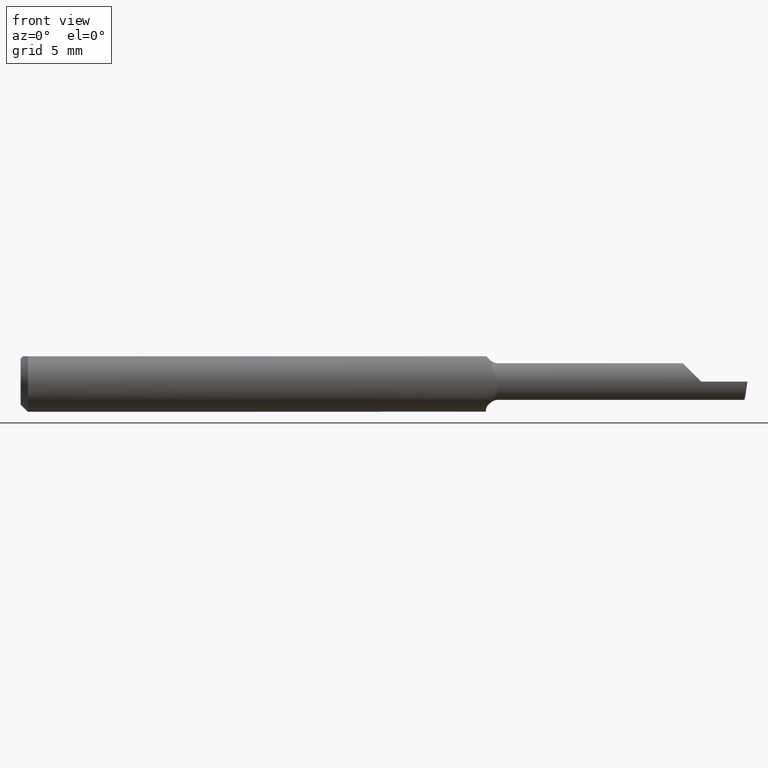
[diagram: clean part render]
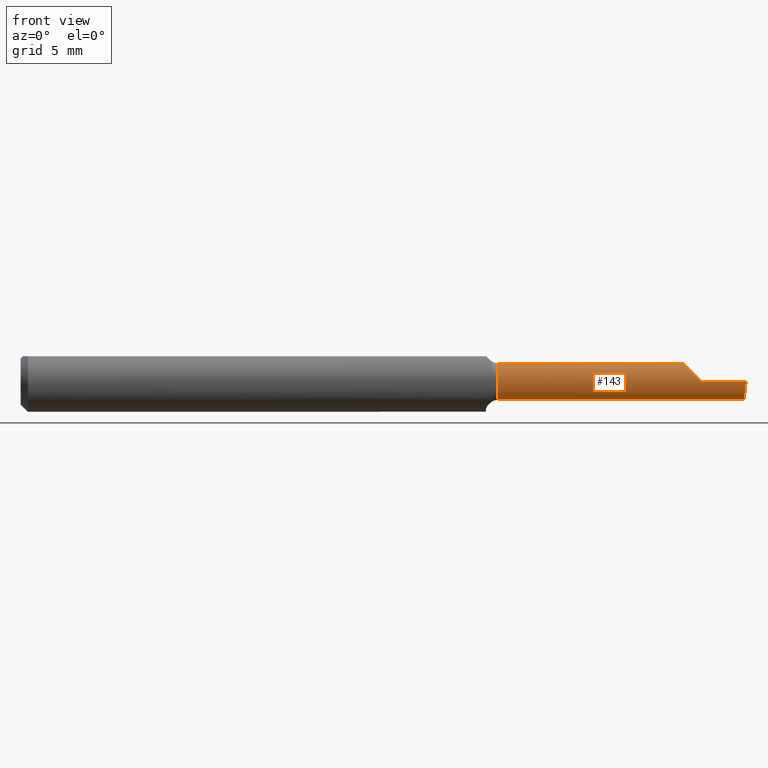
[diagram: same view with one face highlighted and labeled with its STEP entity id]
A machine part, front view. The second image highlights one B-rep face of the part: STEP entity #143.
In plain terms, the highlighted cylindrical surface (edge-blend (fillet) strip) has radius 1.1176 mm, axis along (1, 0, -0).
Its self-contained STEP definition (entity closure, byte-faithful):
#3 = DIRECTION ( 'NONE',  ( 0.000000000000000000, 1.000000000000000000, 0.000000000000000000 ) ) ;
#4 = DIRECTION ( 'NONE',  ( 1.000000000000000000, 1.244524452569355806E-16, -0.000000000000000000 ) ) ;
#9 = VERTEX_POINT ( 'NONE', #453 ) ;
#13 = DIRECTION ( 'NONE',  ( 0.000000000000000000, 1.000000000000000000, 0.000000000000000000 ) ) ;
#14 = VERTEX_POINT ( 'NONE', #300 ) ;
#29 =( BOUNDED_CURVE ( )  B_SPLINE_CURVE ( 3, ( #585, #461, #391, #399 ),
 .UNSPECIFIED., .F., .T. ) 
 B_SPLINE_CURVE_WITH_KNOTS ( ( 4, 4 ),
 ( 3.682777070145067277, 4.704434351040720941 ),
 .UNSPECIFIED. ) 
 CURVE ( )  GEOMETRIC_REPRESENTATION_ITEM ( )  RATIONAL_B_SPLINE_CURVE ( ( 1.000000000000000000, 0.9148931230978425422, 0.9148931230978425422, 1.000000000000000000 ) ) 
 REPRESENTATION_ITEM ( '' )  );
#55 = CARTESIAN_POINT ( 'NONE',  ( 1.493512013321905085, -0.05456631794137141445, -0.02956846890908434305 ) ) ;
#67 = EDGE_CURVE ( 'NONE', #14, #572, #287, .T. ) ;
#107 = CARTESIAN_POINT ( 'NONE',  ( 1.404000000000000137, -0.06234999999999997489, -1.868634782302818344E-17 ) ) ;
#134 = VECTOR ( 'NONE', #306, 39.37007874015748143 ) ;
#143 = ADVANCED_FACE ( 'NONE', ( #404 ), #319, .T. ) ;
#145 = VERTEX_POINT ( 'NONE', #853 ) ;
#155 = CARTESIAN_POINT ( 'NONE',  ( 0.9850000000000000977, -0.04101666666666662492, 0.03771236166328252593 ) ) ;
#157 = CARTESIAN_POINT ( 'NONE',  ( 1.404000000000000137, -0.06234860793252439831, 0.0003499999999998593212 ) ) ;
#170 = CARTESIAN_POINT ( 'NONE',  ( 1.494927643025548925, -0.06234999999999996795, -0.01580873299344354513 ) ) ;
#203 = EDGE_CURVE ( 'NONE', #572, #840, #667, .T. ) ;
#231 = DIRECTION ( 'NONE',  ( -1.000000000000000000, -1.244524452569355806E-16, 0.000000000000000000 ) ) ;
#234 = DIRECTION ( 'NONE',  ( 1.000000000000000000, 1.244524452569355806E-16, -0.000000000000000000 ) ) ;
#247 = LINE ( 'NONE', #577, #493 ) ;
#285 = CARTESIAN_POINT ( 'NONE',  ( 1.404000000000000137, -0.01835000000000001907, 0.000000000000000000 ) ) ;
#287 =( BOUNDED_CURVE ( )  B_SPLINE_CURVE ( 3, ( #433, #55, #170, #702 ),
 .UNSPECIFIED., .F., .F. ) 
 B_SPLINE_CURVE_WITH_KNOTS ( ( 4, 4 ),
 ( 3.403711695609235033, 4.433323605848857873 ),
 .UNSPECIFIED. ) 
 CURVE ( )  GEOMETRIC_REPRESENTATION_ITEM ( )  RATIONAL_B_SPLINE_CURVE ( ( 1.000000000000000000, 0.9135921865189926550, 0.9135921865189926550, 1.000000000000000000 ) ) 
 REPRESENTATION_ITEM ( '' )  );
#295 = AXIS2_PLACEMENT_3D ( 'NONE', #525, #660, #3 ) ;
#300 = CARTESIAN_POINT ( 'NONE',  ( 1.492988786655820244, -0.04101666666666663880, -0.03771236166328250511 ) ) ;
#306 = DIRECTION ( 'NONE',  ( 1.000000000000000000, 1.244524452569355806E-16, -0.000000000000000000 ) ) ;
#319 = CYLINDRICAL_SURFACE ( 'NONE', #425, 0.04399999999999996275 ) ;
#320 = VERTEX_POINT ( 'NONE', #157 ) ;
#332 = VERTEX_POINT ( 'NONE', #155 ) ;
#338 = DIRECTION ( 'NONE',  ( -1.000000000000000000, -0.000000000000000000, -0.000000000000000000 ) ) ;
#342 = DIRECTION ( 'NONE',  ( -1.000000000000000000, -0.000000000000000000, -0.000000000000000000 ) ) ;
#343 = ORIENTED_EDGE ( 'NONE', *, *, #406, .T. ) ;
#361 = LINE ( 'NONE', #370, #134 ) ;
#370 = CARTESIAN_POINT ( 'NONE',  ( 1.499475125171861656, -0.04101666666666663880, -0.03771236166328250511 ) ) ;
#373 = EDGE_CURVE ( 'NONE', #840, #320, #522, .T. ) ;
#389 = EDGE_LOOP ( 'NONE', ( #819, #733, #799, #553, #833, #836, #463, #485, #343 ) ) ;
#391 = CARTESIAN_POINT ( 'NONE',  ( 1.388325359410076176, -0.06222391934658354912, 0.01602464058992407805 ) ) ;
#399 = CARTESIAN_POINT ( 'NONE',  ( 1.404000000000000137, -0.06234860793252439831, 0.0003499999999998593212 ) ) ;
#404 = FACE_OUTER_BOUND ( 'NONE', #389, .T. ) ;
#406 = EDGE_CURVE ( 'NONE', #9, #145, #842, .T. ) ;
#425 = AXIS2_PLACEMENT_3D ( 'NONE', #806, #4, #13 ) ;
#433 = CARTESIAN_POINT ( 'NONE',  ( 1.492988786655820244, -0.04101666666666663880, -0.03771236166328250511 ) ) ;
#439 = EDGE_CURVE ( 'NONE', #515, #145, #247, .T. ) ;
#453 = CARTESIAN_POINT ( 'NONE',  ( 0.9850000000000000977, -0.06235000000000000264, 1.735473943143141055E-37 ) ) ;
#461 = CARTESIAN_POINT ( 'NONE',  ( 1.374712708664317162, -0.05445181251891117319, 0.02963729133568297411 ) ) ;
#463 = ORIENTED_EDGE ( 'NONE', *, *, #850, .F. ) ;
#467 = VECTOR ( 'NONE', #234, 39.37007874015748143 ) ;
#475 = CARTESIAN_POINT ( 'NONE',  ( 1.500000000000000222, -0.06234999999999999570, -1.868634782302818344E-17 ) ) ;
#478 = EDGE_CURVE ( 'NONE', #515, #14, #361, .T. ) ;
#479 = DIRECTION ( 'NONE',  ( 0.000000000000000000, 0.000000000000000000, 1.000000000000000000 ) ) ;
#481 = AXIS2_PLACEMENT_3D ( 'NONE', #285, #342, #479 ) ;
#485 = ORIENTED_EDGE ( 'NONE', *, *, #567, .T. ) ;
#493 = VECTOR ( 'NONE', #231, 39.37007874015748143 ) ;
#513 = CARTESIAN_POINT ( 'NONE',  ( 1.424396830779669498, -0.04101666666666663880, -0.03771236166328252593 ) ) ;
#515 = VERTEX_POINT ( 'NONE', #513 ) ;
#522 = CIRCLE ( 'NONE', #481, 0.04399999999999996275 ) ;
#525 = CARTESIAN_POINT ( 'NONE',  ( 0.9850000000000000977, -0.01835000000000007112, 0.000000000000000000 ) ) ;
#550 = AXIS2_PLACEMENT_3D ( 'NONE', #709, #565, #630 ) ;
#553 = ORIENTED_EDGE ( 'NONE', *, *, #203, .T. ) ;
#565 = DIRECTION ( 'NONE',  ( 1.000000000000000000, 1.244524452569355806E-16, -0.000000000000000000 ) ) ;
#567 = EDGE_CURVE ( 'NONE', #332, #9, #609, .T. ) ;
#572 = VERTEX_POINT ( 'NONE', #797 ) ;
#577 = CARTESIAN_POINT ( 'NONE',  ( 1.242237562585930988, -0.04101666666666664574, -0.03771236166328252593 ) ) ;
#585 = CARTESIAN_POINT ( 'NONE',  ( 1.366637638336717808, -0.04101666666666663186, 0.03771236166328252593 ) ) ;
#609 = CIRCLE ( 'NONE', #295, 0.04399999999999992806 ) ;
#622 = EDGE_CURVE ( 'NONE', #795, #320, #29, .T. ) ;
#630 = DIRECTION ( 'NONE',  ( 0.000000000000000000, 1.000000000000000000, 0.000000000000000000 ) ) ;
#634 = VECTOR ( 'NONE', #338, 39.37007874015748143 ) ;
#660 = DIRECTION ( 'NONE',  ( 1.000000000000000000, 1.244524452569355806E-16, -0.000000000000000000 ) ) ;
#667 = LINE ( 'NONE', #475, #634 ) ;
#702 = CARTESIAN_POINT ( 'NONE',  ( 1.496868711364579774, -0.06234999999999999570, 4.055086865595390561E-17 ) ) ;
#709 = CARTESIAN_POINT ( 'NONE',  ( 0.9850000000000000977, -0.01835000000000007112, 0.000000000000000000 ) ) ;
#733 = ORIENTED_EDGE ( 'NONE', *, *, #478, .T. ) ;
#765 = CARTESIAN_POINT ( 'NONE',  ( 1.242237562585930988, -0.04101666666666664574, 0.03771236166328252593 ) ) ;
#776 = CARTESIAN_POINT ( 'NONE',  ( 1.366637638336717808, -0.04101666666666663186, 0.03771236166328252593 ) ) ;
#795 = VERTEX_POINT ( 'NONE', #776 ) ;
#797 = CARTESIAN_POINT ( 'NONE',  ( 1.496868711364579774, -0.06234999999999999570, 4.055086865595390561E-17 ) ) ;
#799 = ORIENTED_EDGE ( 'NONE', *, *, #67, .T. ) ;
#806 = CARTESIAN_POINT ( 'NONE',  ( 1.499475125171861656, -0.01835000000000000867, 0.000000000000000000 ) ) ;
#819 = ORIENTED_EDGE ( 'NONE', *, *, #439, .F. ) ;
#827 = LINE ( 'NONE', #765, #467 ) ;
#833 = ORIENTED_EDGE ( 'NONE', *, *, #373, .T. ) ;
#836 = ORIENTED_EDGE ( 'NONE', *, *, #622, .F. ) ;
#840 = VERTEX_POINT ( 'NONE', #107 ) ;
#842 = CIRCLE ( 'NONE', #550, 0.04399999999999992806 ) ;
#850 = EDGE_CURVE ( 'NONE', #332, #795, #827, .T. ) ;
#853 = CARTESIAN_POINT ( 'NONE',  ( 0.9850000000000000977, -0.04101666666666656941, -0.03771236166328255368 ) ) ;